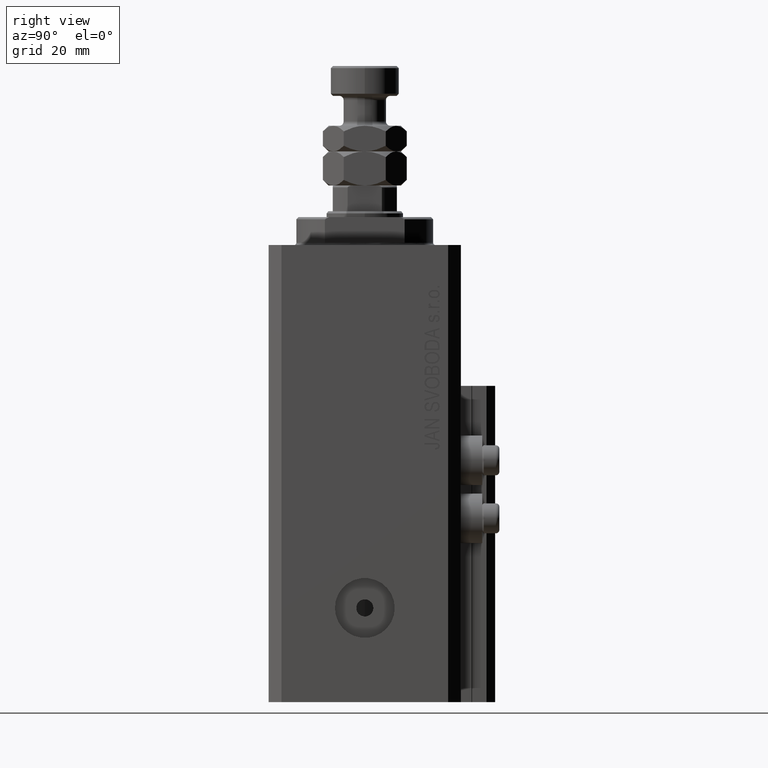
[diagram: clean part render]
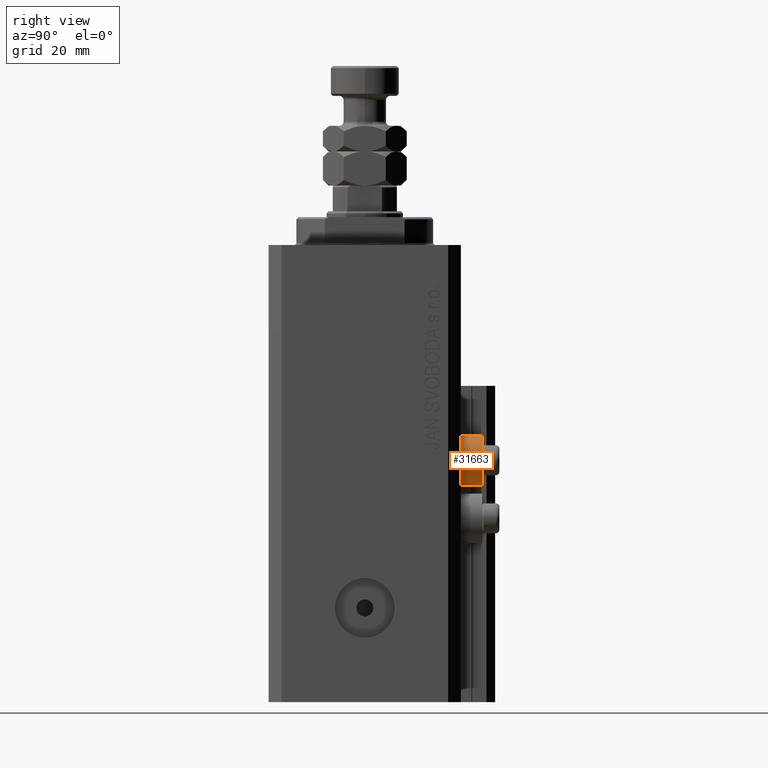
[diagram: same view with one face highlighted and labeled with its STEP entity id]
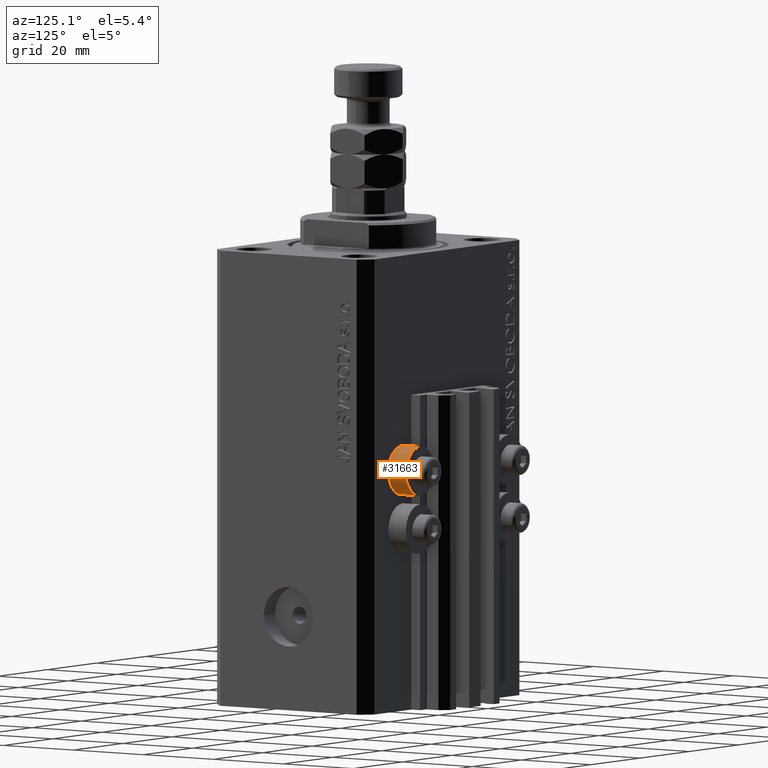
[diagram: same view with one face highlighted and labeled with its STEP entity id]
A machine part, right view. The second image highlights one B-rep face of the part: STEP entity #31663.
A second angle (auxiliary view) of the same face is appended — the face is thin or edge-on in the first view.
In plain terms, the highlighted cylindrical surface (edge-blend (fillet) strip) has radius 5.8 mm, axis along (0, 1, 0).
Its self-contained STEP definition (entity closure, byte-faithful):
#323 = DIRECTION ( 'NONE',  ( -0.000000000000000000, -1.000000000000000000, -0.000000000000000000 ) ) ;
#387 = EDGE_CURVE ( 'NONE', #42679, #20774, #39230, .T. ) ;
#838 = AXIS2_PLACEMENT_3D ( 'NONE', #19786, #5181, #37707 ) ;
#1605 = DIRECTION ( 'NONE',  ( 0.000000000000000000, 1.000000000000000000, 0.000000000000000000 ) ) ;
#4895 = LINE ( 'NONE', #28587, #13396 ) ;
#5181 = DIRECTION ( 'NONE',  ( -0.000000000000000000, -1.000000000000000000, -0.000000000000000000 ) ) ;
#5353 = ORIENTED_EDGE ( 'NONE', *, *, #15348, .F. ) ;
#6121 = ORIENTED_EDGE ( 'NONE', *, *, #387, .T. ) ;
#7145 = EDGE_CURVE ( 'NONE', #39777, #42679, #4895, .T. ) ;
#12523 = DIRECTION ( 'NONE',  ( 0.000000000000000000, 0.000000000000000000, 1.000000000000000000 ) ) ;
#13396 = VECTOR ( 'NONE', #34608, 1000.000000000000000 ) ;
#13493 = FACE_OUTER_BOUND ( 'NONE', #21085, .T. ) ;
#15348 = EDGE_CURVE ( 'NONE', #39777, #16430, #32458, .T. ) ;
#15428 = DIRECTION ( 'NONE',  ( 0.000000000000000000, 0.000000000000000000, 1.000000000000000000 ) ) ;
#16430 = VERTEX_POINT ( 'NONE', #30509 ) ;
#17453 = CARTESIAN_POINT ( 'NONE',  ( 18.00000000000000355, 27.49999999996051514, -50.39999999999999858 ) ) ;
#17491 = CARTESIAN_POINT ( 'NONE',  ( 18.00000000000000355, 22.49999999999951328, -56.20000000000000284 ) ) ;
#19786 = CARTESIAN_POINT ( 'NONE',  ( 18.00000000000000355, 22.49999999999951328, -50.39999999999999858 ) ) ;
#20750 = ORIENTED_EDGE ( 'NONE', *, *, #22643, .F. ) ;
#20774 = VERTEX_POINT ( 'NONE', #34881 ) ;
#21085 = EDGE_LOOP ( 'NONE', ( #5353, #22174, #6121, #20750 ) ) ;
#22174 = ORIENTED_EDGE ( 'NONE', *, *, #7145, .T. ) ;
#22643 = EDGE_CURVE ( 'NONE', #16430, #20774, #42588, .T. ) ;
#26172 = VECTOR ( 'NONE', #31192, 1000.000000000000000 ) ;
#27729 = CARTESIAN_POINT ( 'NONE',  ( 18.00000000000000355, 27.49999999996051514, -44.60000000000000142 ) ) ;
#28587 = CARTESIAN_POINT ( 'NONE',  ( 18.00000000000000355, 27.49999999996051514, -56.20000000000000284 ) ) ;
#30101 = CARTESIAN_POINT ( 'NONE',  ( 18.00000000000000355, 27.49999999996051514, -56.20000000000000284 ) ) ;
#30509 = CARTESIAN_POINT ( 'NONE',  ( 18.00000000000000355, 22.49999999999951328, -44.60000000000000142 ) ) ;
#31192 = DIRECTION ( 'NONE',  ( 0.000000000000000000, 1.000000000000000000, 0.000000000000000000 ) ) ;
#31663 = ADVANCED_FACE ( 'NONE', ( #13493 ), #35526, .T. ) ;
#32458 = CIRCLE ( 'NONE', #838, 5.799999999999999822 ) ;
#34608 = DIRECTION ( 'NONE',  ( 0.000000000000000000, 1.000000000000000000, 0.000000000000000000 ) ) ;
#34881 = CARTESIAN_POINT ( 'NONE',  ( 18.00000000000000355, 27.49999999996051514, -44.60000000000000142 ) ) ;
#35526 = CYLINDRICAL_SURFACE ( 'NONE', #47124, 5.799999999999999822 ) ;
#37707 = DIRECTION ( 'NONE',  ( 0.000000000000000000, 0.000000000000000000, 1.000000000000000000 ) ) ;
#39230 = CIRCLE ( 'NONE', #47131, 5.799999999999999822 ) ;
#39777 = VERTEX_POINT ( 'NONE', #17491 ) ;
#42588 = LINE ( 'NONE', #27729, #26172 ) ;
#42679 = VERTEX_POINT ( 'NONE', #30101 ) ;
#45145 = CARTESIAN_POINT ( 'NONE',  ( 18.00000000000000355, 27.49999999996051514, -50.39999999999999858 ) ) ;
#47124 = AXIS2_PLACEMENT_3D ( 'NONE', #17453, #1605, #12523 ) ;
#47131 = AXIS2_PLACEMENT_3D ( 'NONE', #45145, #323, #15428 ) ;